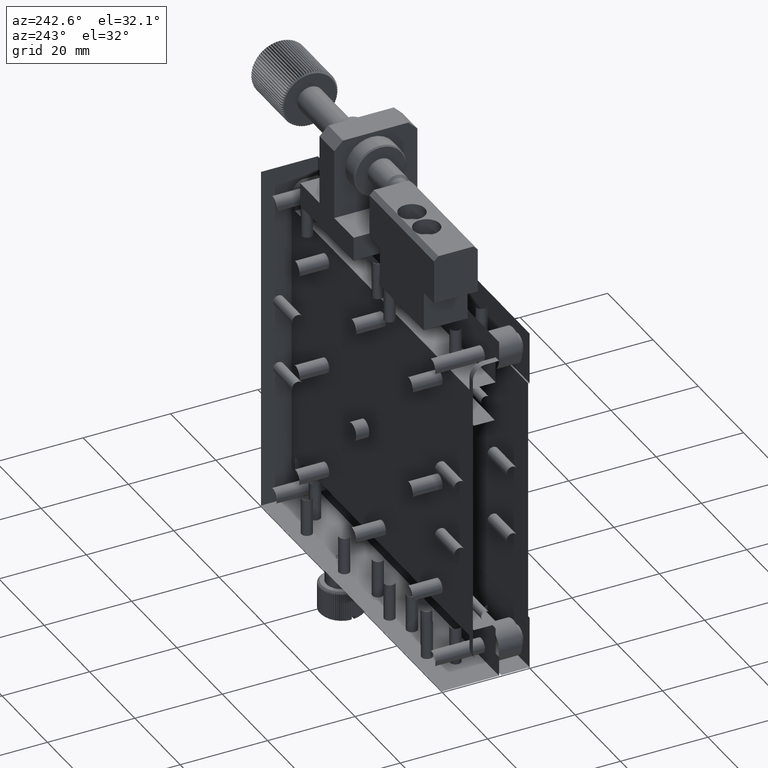
[diagram: clean part render]
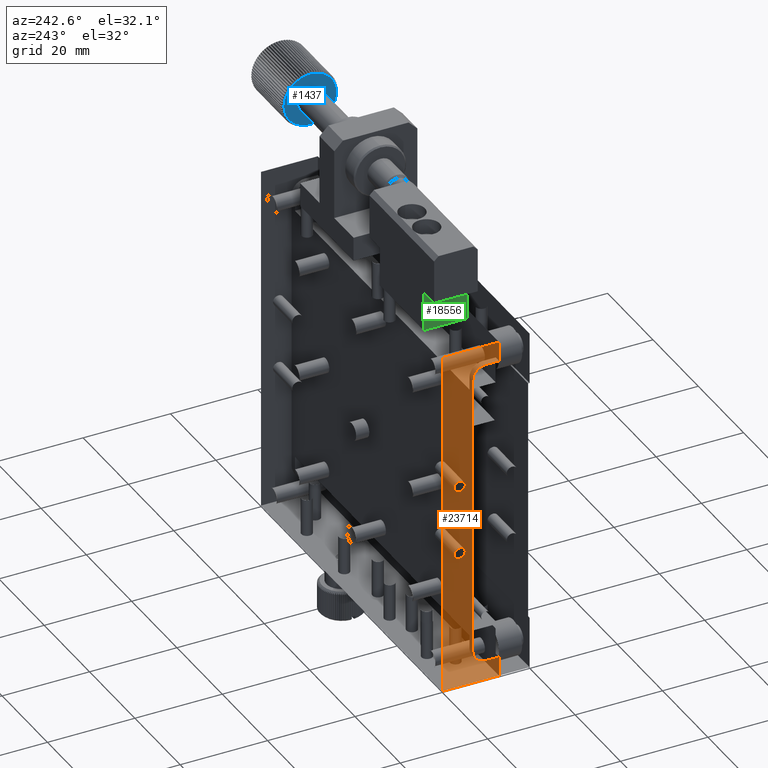
[diagram: same view with three faces highlighted in distinct colors, each labeled with its STEP entity id]
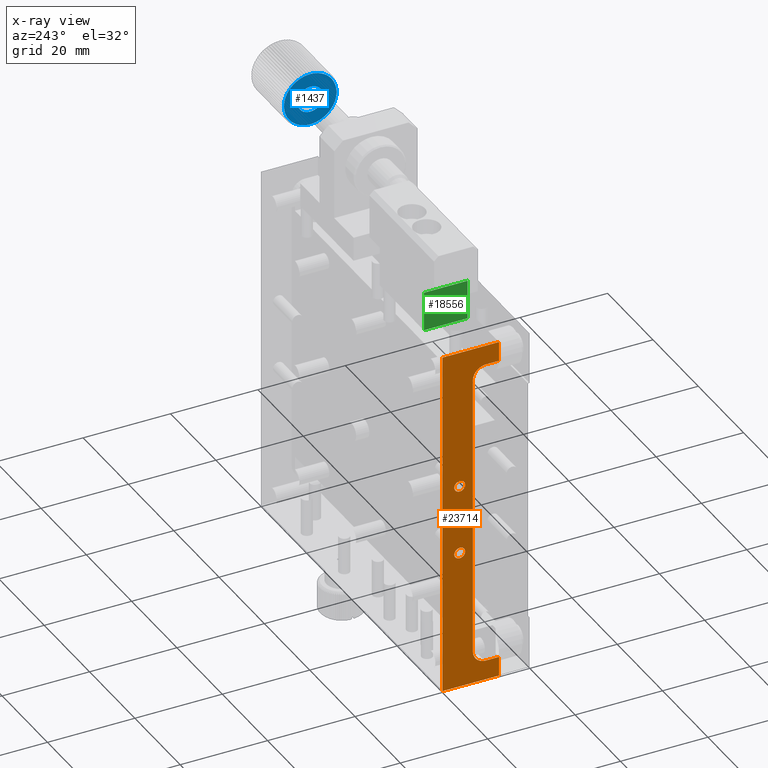
[diagram: x-ray of the same camera — body ghosted, the three highlighted faces saturated]
A machine part, auxiliary view with three faces highlighted in distinct colors.
The next image is the same camera in x-ray (body ghosted, the three faces saturated) — at least one of them is partly hidden behind the body in this view.
Their STEP definitions:

[orange] entity #23714 — the highlighted planar face has unit normal (-1, 0, 0).
#4 = VECTOR ( 'NONE', #22137, 1000.000000000000000 ) ;
#163 = DIRECTION ( 'NONE',  ( 0.000000000000000000, 0.000000000000000000, 1.000000000000000000 ) ) ;
#388 = EDGE_CURVE ( 'NONE', #6894, #15787, #10564, .T. ) ;
#398 = CARTESIAN_POINT ( 'NONE',  ( -40.47147342062429232, 6.656824835573202925, 9.249999999999987566 ) ) ;
#918 = DIRECTION ( 'NONE',  ( 0.000000000000000000, 1.000000000000000000, 0.000000000000000000 ) ) ;
#939 = DIRECTION ( 'NONE',  ( -0.000000000000000000, -1.000000000000000000, 0.000000000000000000 ) ) ;
#995 = DIRECTION ( 'NONE',  ( 0.000000000000000000, 0.000000000000000000, -1.000000000000000000 ) ) ;
#1880 = ORIENTED_EDGE ( 'NONE', *, *, #388, .T. ) ;
#1987 = DIRECTION ( 'NONE',  ( 0.000000000000000000, -1.000000000000000000, -0.000000000000000000 ) ) ;
#2496 = VERTEX_POINT ( 'NONE', #5186 ) ;
#2501 = VERTEX_POINT ( 'NONE', #22649 ) ;
#2837 = VERTEX_POINT ( 'NONE', #19299 ) ;
#2998 = VERTEX_POINT ( 'NONE', #23713 ) ;
#3021 = VECTOR ( 'NONE', #918, 1000.000000000000000 ) ;
#3157 = CARTESIAN_POINT ( 'NONE',  ( -40.47147342062429232, 6.656824835573202925, -8.000000000000000000 ) ) ;
#3216 = DIRECTION ( 'NONE',  ( 0.000000000000000000, 0.000000000000000000, -1.000000000000000000 ) ) ;
#4186 = CARTESIAN_POINT ( 'NONE',  ( -40.47147342062429232, -2.343175164426796186, 40.00000000000000000 ) ) ;
#4289 = DIRECTION ( 'NONE',  ( 1.000000000000000000, 0.000000000000000000, 0.000000000000000000 ) ) ;
#4653 = EDGE_LOOP ( 'NONE', ( #16385 ) ) ;
#5103 = DIRECTION ( 'NONE',  ( 1.000000000000000000, 0.000000000000000000, 0.000000000000000000 ) ) ;
#5164 = DIRECTION ( 'NONE',  ( 1.000000000000000000, 0.000000000000000000, 0.000000000000000000 ) ) ;
#5186 = CARTESIAN_POINT ( 'NONE',  ( -40.47147342062429232, 3.656824835573203814, -32.49999999999999289 ) ) ;
#5241 = DIRECTION ( 'NONE',  ( 0.000000000000000000, 0.000000000000000000, 1.000000000000000000 ) ) ;
#5400 = ORIENTED_EDGE ( 'NONE', *, *, #13805, .F. ) ;
#5442 = ORIENTED_EDGE ( 'NONE', *, *, #9317, .F. ) ;
#5768 = EDGE_CURVE ( 'NONE', #21956, #15787, #11929, .T. ) ;
#5966 = CARTESIAN_POINT ( 'NONE',  ( -40.47147342062429232, 0.6568248355732047017, 35.50000000000001421 ) ) ;
#6630 = EDGE_CURVE ( 'NONE', #21956, #24991, #9798, .T. ) ;
#6894 = VERTEX_POINT ( 'NONE', #9266 ) ;
#6896 = AXIS2_PLACEMENT_3D ( 'NONE', #16164, #4289, #995 ) ;
#7132 = EDGE_LOOP ( 'NONE', ( #5442 ) ) ;
#7140 = EDGE_CURVE ( 'NONE', #2496, #2837, #16436, .T. ) ;
#8209 = EDGE_LOOP ( 'NONE', ( #1880, #8235, #11433, #21066, #25625, #15544, #14085, #15126, #13601, #5400 ) ) ;
#8235 = ORIENTED_EDGE ( 'NONE', *, *, #5768, .F. ) ;
#8329 = VERTEX_POINT ( 'NONE', #8588 ) ;
#8352 = CARTESIAN_POINT ( 'NONE',  ( -40.47147342062429232, 0.6568248355732047017, -35.50000000000000711 ) ) ;
#8588 = CARTESIAN_POINT ( 'NONE',  ( -40.47147342062429232, 6.656824835573202925, -6.750000000000013323 ) ) ;
#8797 = CIRCLE ( 'NONE', #9217, 1.249999999999987121 ) ;
#9035 = AXIS2_PLACEMENT_3D ( 'NONE', #9154, #17226, #19051 ) ;
#9154 = CARTESIAN_POINT ( 'NONE',  ( -40.47147342062429232, 10.65682483557320559, 40.00000000000000000 ) ) ;
#9217 = AXIS2_PLACEMENT_3D ( 'NONE', #3157, #5103, #15035 ) ;
#9219 = AXIS2_PLACEMENT_3D ( 'NONE', #19030, #19286, #16951 ) ;
#9266 = CARTESIAN_POINT ( 'NONE',  ( -40.47147342062429232, -2.343175164426796631, -39.99999999999999289 ) ) ;
#9317 = EDGE_CURVE ( 'NONE', #18744, #18744, #14171, .T. ) ;
#9318 = EDGE_CURVE ( 'NONE', #20404, #2501, #15149, .T. ) ;
#9507 = VECTOR ( 'NONE', #18174, 1000.000000000000000 ) ;
#9798 = LINE ( 'NONE', #17745, #21196 ) ;
#10564 = LINE ( 'NONE', #18754, #3021 ) ;
#10701 = EDGE_CURVE ( 'NONE', #8329, #8329, #8797, .T. ) ;
#10977 = FACE_BOUND ( 'NONE', #4653, .T. ) ;
#11362 = FACE_BOUND ( 'NONE', #7132, .T. ) ;
#11433 = ORIENTED_EDGE ( 'NONE', *, *, #6630, .T. ) ;
#11929 = LINE ( 'NONE', #24164, #9507 ) ;
#12014 = VECTOR ( 'NONE', #21991, 1000.000000000000000 ) ;
#12042 = CARTESIAN_POINT ( 'NONE',  ( -40.47147342062429232, 10.65682483557320559, -39.99999999999999289 ) ) ;
#12319 = CIRCLE ( 'NONE', #6896, 2.999999999999999112 ) ;
#12822 = CIRCLE ( 'NONE', #24479, 2.999999999999995559 ) ;
#13601 = ORIENTED_EDGE ( 'NONE', *, *, #20790, .F. ) ;
#13687 = EDGE_CURVE ( 'NONE', #2501, #24991, #17487, .T. ) ;
#13763 = CARTESIAN_POINT ( 'NONE',  ( -40.47147342062429232, 10.65682483557320559, 40.00000000000000000 ) ) ;
#13805 = EDGE_CURVE ( 'NONE', #6894, #2998, #22155, .T. ) ;
#14069 = CARTESIAN_POINT ( 'NONE',  ( -40.47147342062429232, 10.65682483557320559, -35.50000000000001421 ) ) ;
#14085 = ORIENTED_EDGE ( 'NONE', *, *, #7140, .F. ) ;
#14171 = CIRCLE ( 'NONE', #9219, 1.249999999999987121 ) ;
#14221 = CARTESIAN_POINT ( 'NONE',  ( -40.47147342062429232, 3.656824835573203814, 40.00000000000000000 ) ) ;
#15035 = DIRECTION ( 'NONE',  ( 0.000000000000000000, 0.000000000000000000, 1.000000000000000000 ) ) ;
#15039 = PLANE ( 'NONE',  #9035 ) ;
#15126 = ORIENTED_EDGE ( 'NONE', *, *, #24314, .F. ) ;
#15149 = LINE ( 'NONE', #25277, #15892 ) ;
#15544 = ORIENTED_EDGE ( 'NONE', *, *, #16888, .F. ) ;
#15787 = VERTEX_POINT ( 'NONE', #12042 ) ;
#15892 = VECTOR ( 'NONE', #939, 1000.000000000000000 ) ;
#16029 = LINE ( 'NONE', #14069, #12014 ) ;
#16164 = CARTESIAN_POINT ( 'NONE',  ( -40.47147342062429232, 0.6568248355732047017, 32.50000000000000000 ) ) ;
#16385 = ORIENTED_EDGE ( 'NONE', *, *, #10701, .F. ) ;
#16436 = LINE ( 'NONE', #14221, #4 ) ;
#16888 = EDGE_CURVE ( 'NONE', #2837, #20404, #12319, .T. ) ;
#16951 = DIRECTION ( 'NONE',  ( 0.000000000000000000, 0.000000000000000000, 1.000000000000000000 ) ) ;
#17032 = CARTESIAN_POINT ( 'NONE',  ( -40.47147342062429232, 0.6568248355732047017, -32.49999999999999289 ) ) ;
#17226 = DIRECTION ( 'NONE',  ( -1.000000000000000000, 0.000000000000000000, 0.000000000000000000 ) ) ;
#17487 = LINE ( 'NONE', #19564, #25072 ) ;
#17745 = CARTESIAN_POINT ( 'NONE',  ( -40.47147342062429232, 10.65682483557320559, 40.00000000000000000 ) ) ;
#18174 = DIRECTION ( 'NONE',  ( 0.000000000000000000, -0.000000000000000000, -1.000000000000000000 ) ) ;
#18744 = VERTEX_POINT ( 'NONE', #398 ) ;
#18754 = CARTESIAN_POINT ( 'NONE',  ( -40.47147342062429232, 10.65682483557320559, -39.99999999999999289 ) ) ;
#19030 = CARTESIAN_POINT ( 'NONE',  ( -40.47147342062429232, 6.656824835573202925, 8.000000000000000000 ) ) ;
#19051 = DIRECTION ( 'NONE',  ( 0.000000000000000000, 0.000000000000000000, 1.000000000000000000 ) ) ;
#19286 = DIRECTION ( 'NONE',  ( 1.000000000000000000, 0.000000000000000000, 0.000000000000000000 ) ) ;
#19299 = CARTESIAN_POINT ( 'NONE',  ( -40.47147342062429232, 3.656824835573203814, 32.50000000000000000 ) ) ;
#19564 = CARTESIAN_POINT ( 'NONE',  ( -40.47147342062429232, -2.343175164426796186, 40.00000000000000000 ) ) ;
#20034 = VERTEX_POINT ( 'NONE', #8352 ) ;
#20404 = VERTEX_POINT ( 'NONE', #5966 ) ;
#20790 = EDGE_CURVE ( 'NONE', #2998, #20034, #16029, .T. ) ;
#21009 = FACE_OUTER_BOUND ( 'NONE', #8209, .T. ) ;
#21066 = ORIENTED_EDGE ( 'NONE', *, *, #13687, .F. ) ;
#21196 = VECTOR ( 'NONE', #1987, 1000.000000000000000 ) ;
#21956 = VERTEX_POINT ( 'NONE', #13763 ) ;
#21991 = DIRECTION ( 'NONE',  ( 0.000000000000000000, 1.000000000000000000, -0.000000000000000000 ) ) ;
#22137 = DIRECTION ( 'NONE',  ( 0.000000000000000000, 0.000000000000000000, 1.000000000000000000 ) ) ;
#22155 = LINE ( 'NONE', #4186, #22581 ) ;
#22521 = CARTESIAN_POINT ( 'NONE',  ( -40.47147342062429232, -2.343175164426796631, 40.00000000000000000 ) ) ;
#22581 = VECTOR ( 'NONE', #163, 1000.000000000000000 ) ;
#22649 = CARTESIAN_POINT ( 'NONE',  ( -40.47147342062429232, -2.343175164426796631, 35.50000000000001421 ) ) ;
#23713 = CARTESIAN_POINT ( 'NONE',  ( -40.47147342062429232, -2.343175164426796631, -35.50000000000001421 ) ) ;
#23714 = ADVANCED_FACE ( 'NONE', ( #21009, #10977, #11362 ), #15039, .F. ) ;
#24164 = CARTESIAN_POINT ( 'NONE',  ( -40.47147342062429232, 10.65682483557320559, 0.000000000000000000 ) ) ;
#24314 = EDGE_CURVE ( 'NONE', #20034, #2496, #12822, .T. ) ;
#24479 = AXIS2_PLACEMENT_3D ( 'NONE', #17032, #5164, #3216 ) ;
#24991 = VERTEX_POINT ( 'NONE', #22521 ) ;
#25072 = VECTOR ( 'NONE', #5241, 1000.000000000000000 ) ;
#25277 = CARTESIAN_POINT ( 'NONE',  ( -40.47147342062429232, 10.65682483557320559, 35.50000000000001421 ) ) ;
#25625 = ORIENTED_EDGE ( 'NONE', *, *, #9318, .F. ) ;

[blue] entity #1437 — the highlighted planar face has unit normal (-1, -0, -0).
#46 = CARTESIAN_POINT ( 'NONE',  ( 35.52852657946914405, 1.456824835573184762, 57.00000000000002132 ) ) ;
#107 = CIRCLE ( 'NONE', #13837, 6.000000000077214679 ) ;
#122 = ORIENTED_EDGE ( 'NONE', *, *, #3115, .T. ) ;
#154 = DIRECTION ( 'NONE',  ( 0.000000000000000000, -1.243218491100712600E-14, -1.000000000000000000 ) ) ;
#306 = ORIENTED_EDGE ( 'NONE', *, *, #2323, .T. ) ;
#318 = CARTESIAN_POINT ( 'NONE',  ( 35.52852657946914405, 1.456824835573184762, 57.00000000000002132 ) ) ;
#347 = DIRECTION ( 'NONE',  ( 0.000000000000000000, 0.000000000000000000, -1.000000000000000000 ) ) ;
#363 = CARTESIAN_POINT ( 'NONE',  ( 35.52852657946914405, 1.456824835573184762, 57.00000000000002132 ) ) ;
#375 = VERTEX_POINT ( 'NONE', #4940 ) ;
#399 = DIRECTION ( 'NONE',  ( 0.000000000000000000, -5.063224145442146427E-14, -1.000000000000000000 ) ) ;
#437 = VERTEX_POINT ( 'NONE', #20969 ) ;
#470 = EDGE_CURVE ( 'NONE', #14326, #8690, #1768, .T. ) ;
#554 = EDGE_CURVE ( 'NONE', #10200, #4977, #23795, .T. ) ;
#565 = VERTEX_POINT ( 'NONE', #20262 ) ;
#587 = DIRECTION ( 'NONE',  ( -1.000000000000000000, 0.000000000000000000, -0.000000000000000000 ) ) ;
#609 = DIRECTION ( 'NONE',  ( -1.000000000000000000, 0.000000000000000000, -0.000000000000000000 ) ) ;
#614 = CIRCLE ( 'NONE', #18912, 6.000000000077214679 ) ;
#789 = VERTEX_POINT ( 'NONE', #11646 ) ;
#791 = VERTEX_POINT ( 'NONE', #25324 ) ;
#795 = VERTEX_POINT ( 'NONE', #17509 ) ;
#933 = EDGE_CURVE ( 'NONE', #17384, #1521, #12609, .T. ) ;
#938 = EDGE_CURVE ( 'NONE', #4774, #789, #7604, .T. ) ;
#1001 = EDGE_CURVE ( 'NONE', #4599, #15926, #22164, .T. ) ;
#1012 = CARTESIAN_POINT ( 'NONE',  ( 35.52852657946914405, 1.456824835573184762, 57.00000000000002132 ) ) ;
#1054 = EDGE_CURVE ( 'NONE', #25287, #375, #4288, .T. ) ;
#1066 = AXIS2_PLACEMENT_3D ( 'NONE', #46, #19958, #2618 ) ;
#1100 = CARTESIAN_POINT ( 'NONE',  ( 35.52852657937573611, 0.6514252406678480156, 51.05430142939634663 ) ) ;
#1188 = AXIS2_PLACEMENT_3D ( 'NONE', #6192, #14163, #23907 ) ;
#1270 = CIRCLE ( 'NONE', #2936, 6.000000000077214679 ) ;
#1272 = DIRECTION ( 'NONE',  ( 0.000000000000000000, 1.770863548370201041E-15, -1.000000000000000000 ) ) ;
#1325 = EDGE_CURVE ( 'NONE', #10617, #565, #5528, .T. ) ;
#1351 = CARTESIAN_POINT ( 'NONE',  ( 35.52852657937573611, -3.397277130673238332, 53.47328848624748332 ) ) ;
#1373 = ORIENTED_EDGE ( 'NONE', *, *, #470, .T. ) ;
#1430 = VERTEX_POINT ( 'NONE', #21457 ) ;
#1437 = ADVANCED_FACE ( 'NONE', ( #3876, #5684 ), #11823, .T. ) ;
#1507 = CARTESIAN_POINT ( 'NONE',  ( 35.52852657937573611, 7.074234059407871200, 59.10824894448667521 ) ) ;
#1521 = VERTEX_POINT ( 'NONE', #14177 ) ;
#1653 = VERTEX_POINT ( 'NONE', #22493 ) ;
#1670 = EDGE_CURVE ( 'NONE', #18598, #8339, #23090, .T. ) ;
#1714 = AXIS2_PLACEMENT_3D ( 'NONE', #15221, #3212, #16777 ) ;
#1768 = CIRCLE ( 'NONE', #11335, 6.000000000077214679 ) ;
#1828 = CIRCLE ( 'NONE', #24706, 6.000000000077214679 ) ;
#1908 = VERTEX_POINT ( 'NONE', #16112 ) ;
#1914 = AXIS2_PLACEMENT_3D ( 'NONE', #4044, #6118, #154 ) ;
#1965 = VERTEX_POINT ( 'NONE', #24154 ) ;
#2000 = DIRECTION ( 'NONE',  ( 0.000000000000000000, -2.041914091488089201E-14, -1.000000000000000000 ) ) ;
#2043 = CARTESIAN_POINT ( 'NONE',  ( 35.52852657937573611, -4.519020928394276382, 57.53783585342020501 ) ) ;
#2121 = DIRECTION ( 'NONE',  ( -1.000000000000000000, 0.000000000000000000, -0.000000000000000000 ) ) ;
#2158 = CARTESIAN_POINT ( 'NONE',  ( 35.52852657937573611, -2.689551058345211132, 52.66323081703850306 ) ) ;
#2323 = EDGE_CURVE ( 'NONE', #14743, #18779, #21424, .T. ) ;
#2353 = CARTESIAN_POINT ( 'NONE',  ( 35.52852657946914405, 1.456824835573184762, 57.00000000000002132 ) ) ;
#2359 = EDGE_CURVE ( 'NONE', #21437, #12367, #18546, .T. ) ;
#2392 = CARTESIAN_POINT ( 'NONE',  ( 35.52852657937573611, -1.386387139262870383, 51.71642680886306920 ) ) ;
#2433 = CIRCLE ( 'NONE', #16984, 6.000000000077214679 ) ;
#2438 = AXIS2_PLACEMENT_3D ( 'NONE', #16381, #609, #347 ) ;
#2453 = AXIS2_PLACEMENT_3D ( 'NONE', #21731, #13423, #11842 ) ;
#2600 = EDGE_CURVE ( 'NONE', #6976, #10720, #11882, .T. ) ;
#2618 = DIRECTION ( 'NONE',  ( 0.000000000000000000, 0.000000000000000000, -1.000000000000000000 ) ) ;
#2699 = CARTESIAN_POINT ( 'NONE',  ( 35.52852657946914405, 1.456824835573184762, 57.00000000000002132 ) ) ;
#2720 = ORIENTED_EDGE ( 'NONE', *, *, #25105, .T. ) ;
#2753 = AXIS2_PLACEMENT_3D ( 'NONE', #363, #18464, #24184 ) ;
#2822 = CARTESIAN_POINT ( 'NONE',  ( 35.52852657937573611, 1.456824835573184540, 57.00000000000001421 ) ) ;
#2836 = DIRECTION ( 'NONE',  ( -1.000000000000000000, 0.000000000000000000, -0.000000000000000000 ) ) ;
#2855 = DIRECTION ( 'NONE',  ( -1.000000000000000000, 0.000000000000000000, -0.000000000000000000 ) ) ;
#2932 = CIRCLE ( 'NONE', #10046, 6.000000000077214679 ) ;
#2936 = AXIS2_PLACEMENT_3D ( 'NONE', #24957, #7112, #15082 ) ;
#2947 = CARTESIAN_POINT ( 'NONE',  ( 35.52852657937573611, 7.360402367161051451, 55.92865863120899661 ) ) ;
#2953 = ORIENTED_EDGE ( 'NONE', *, *, #5947, .T. ) ;
#2959 = CARTESIAN_POINT ( 'NONE',  ( 35.52852657937573611, 6.862638042984102960, 59.60330243470363598 ) ) ;
#2961 = EDGE_CURVE ( 'NONE', #3053, #795, #17708, .T. ) ;
#3053 = VERTEX_POINT ( 'NONE', #11616 ) ;
#3089 = VERTEX_POINT ( 'NONE', #5729 ) ;
#3096 = VERTEX_POINT ( 'NONE', #11739 ) ;
#3115 = EDGE_CURVE ( 'NONE', #19557, #5220, #10223, .T. ) ;
#3158 = CIRCLE ( 'NONE', #16493, 6.000000000077214679 ) ;
#3212 = DIRECTION ( 'NONE',  ( -1.000000000000000000, 0.000000000000000000, -0.000000000000000000 ) ) ;
#3219 = CARTESIAN_POINT ( 'NONE',  ( 35.52852657946914405, 1.456824835573184762, 57.00000000000002132 ) ) ;
#3244 = ORIENTED_EDGE ( 'NONE', *, *, #7593, .T. ) ;
#3270 = ORIENTED_EDGE ( 'NONE', *, *, #3637, .T. ) ;
#3320 = VERTEX_POINT ( 'NONE', #8854 ) ;
#3365 = CARTESIAN_POINT ( 'NONE',  ( 35.52852657937573611, -3.397277130673288070, 60.52671151375248826 ) ) ;
#3368 = EDGE_CURVE ( 'NONE', #12121, #13381, #23145, .T. ) ;
#3487 = CARTESIAN_POINT ( 'NONE',  ( 35.52852657946914405, 1.456824835573184762, 57.00000000000002132 ) ) ;
#3604 = DIRECTION ( 'NONE',  ( 0.000000000000000000, 0.000000000000000000, -1.000000000000000000 ) ) ;
#3621 = VERTEX_POINT ( 'NONE', #4279 ) ;
#3637 = EDGE_CURVE ( 'NONE', #1908, #23736, #18597, .T. ) ;
#3678 = CIRCLE ( 'NONE', #7015, 6.000000000077214679 ) ;
#3706 = CIRCLE ( 'NONE', #21574, 6.000000000077214679 ) ;
#3736 = DIRECTION ( 'NONE',  ( -1.000000000000000000, 0.000000000000000000, -0.000000000000000000 ) ) ;
#3876 = FACE_BOUND ( 'NONE', #19677, .T. ) ;
#3889 = ORIENTED_EDGE ( 'NONE', *, *, #15451, .T. ) ;
#4009 = VERTEX_POINT ( 'NONE', #23211 ) ;
#4033 = DIRECTION ( 'NONE',  ( 0.000000000000000000, 1.597391200774752887E-14, -1.000000000000000000 ) ) ;
#4044 = CARTESIAN_POINT ( 'NONE',  ( 35.52852657946914405, 1.456824835573184762, 57.00000000000002132 ) ) ;
#4070 = CARTESIAN_POINT ( 'NONE',  ( 35.52852657946914405, 1.456824835573184762, 57.00000000000002132 ) ) ;
#4094 = AXIS2_PLACEMENT_3D ( 'NONE', #6251, #22144, #23972 ) ;
#4119 = CARTESIAN_POINT ( 'NONE',  ( 35.52852657946914405, 1.456824835573184762, 57.00000000000002132 ) ) ;
#4121 = CARTESIAN_POINT ( 'NONE',  ( 35.52852657946914405, 1.456824835573184762, 57.00000000000002132 ) ) ;
#4126 = CARTESIAN_POINT ( 'NONE',  ( 35.52852657937573611, 4.762206724283655213, 51.99256047767557476 ) ) ;
#4179 = ORIENTED_EDGE ( 'NONE', *, *, #17115, .T. ) ;
#4180 = DIRECTION ( 'NONE',  ( -1.000000000000000000, 0.000000000000000000, -0.000000000000000000 ) ) ;
#4209 = DIRECTION ( 'NONE',  ( -1.000000000000000000, 0.000000000000000000, -0.000000000000000000 ) ) ;
#4279 = CARTESIAN_POINT ( 'NONE',  ( 35.52852657937573611, 4.300036810409340049, 51.71642680886314025 ) ) ;
#4286 = CIRCLE ( 'NONE', #20084, 6.000000000077214679 ) ;
#4288 = CIRCLE ( 'NONE', #21733, 6.000000000077214679 ) ;
#4320 = CARTESIAN_POINT ( 'NONE',  ( 35.52852657937573611, 6.607517597180954105, 60.07739566443341772 ) ) ;
#4334 = ORIENTED_EDGE ( 'NONE', *, *, #933, .T. ) ;
#4444 = DIRECTION ( 'NONE',  ( -1.000000000000000000, 0.000000000000000000, -0.000000000000000000 ) ) ;
#4514 = VERTEX_POINT ( 'NONE', #16651 ) ;
#4599 = VERTEX_POINT ( 'NONE', #24967 ) ;
#4654 = CARTESIAN_POINT ( 'NONE',  ( 35.52852657946914405, 1.456824835573184762, 57.00000000000002132 ) ) ;
#4774 = VERTEX_POINT ( 'NONE', #5781 ) ;
#4780 = CARTESIAN_POINT ( 'NONE',  ( 35.52852657946914405, 1.456824835573184762, 57.00000000000002132 ) ) ;
#4821 = CARTESIAN_POINT ( 'NONE',  ( 35.52852657946914405, 1.456824835573184762, 57.00000000000002132 ) ) ;
#4932 = AXIS2_PLACEMENT_3D ( 'NONE', #14355, #10433, #18106 ) ;
#4940 = CARTESIAN_POINT ( 'NONE',  ( 35.52852657937573611, 5.975253631591893821, 53.05236764436442343 ) ) ;
#4976 = DIRECTION ( 'NONE',  ( 0.000000000000000000, 4.618701254728810428E-14, -1.000000000000000000 ) ) ;
#4977 = VERTEX_POINT ( 'NONE', #7340 ) ;
#5008 = CIRCLE ( 'NONE', #14595, 6.000000000077214679 ) ;
#5052 = AXIS2_PLACEMENT_3D ( 'NONE', #4780, #2836, #6997 ) ;
#5091 = AXIS2_PLACEMENT_3D ( 'NONE', #25003, #15127, #23043 ) ;
#5119 = CARTESIAN_POINT ( 'NONE',  ( 35.52852657946914405, 1.456824835573184762, 57.00000000000002132 ) ) ;
#5125 = CARTESIAN_POINT ( 'NONE',  ( 35.52852657937573611, -0.3972771306752109766, 51.29366090223287244 ) ) ;
#5149 = ORIENTED_EDGE ( 'NONE', *, *, #11988, .T. ) ;
#5220 = VERTEX_POINT ( 'NONE', #5222 ) ;
#5222 = CARTESIAN_POINT ( 'NONE',  ( 35.52852657937573611, 4.300036810409268995, 62.28357319113693791 ) ) ;
#5231 = CIRCLE ( 'NONE', #2753, 6.000000000077214679 ) ;
#5323 = CARTESIAN_POINT ( 'NONE',  ( 35.52852657946914405, 1.456824835573184762, 57.00000000000002132 ) ) ;
#5362 = EDGE_CURVE ( 'NONE', #19416, #19557, #17395, .T. ) ;
#5472 = EDGE_CURVE ( 'NONE', #10242, #14743, #10321, .T. ) ;
#5506 = DIRECTION ( 'NONE',  ( -1.000000000000000000, 0.000000000000000000, -0.000000000000000000 ) ) ;
#5522 = EDGE_CURVE ( 'NONE', #565, #24226, #7011, .T. ) ;
#5528 = CIRCLE ( 'NONE', #15552, 6.000000000077214679 ) ;
#5568 = EDGE_CURVE ( 'NONE', #5220, #12121, #25317, .T. ) ;
#5623 = DIRECTION ( 'NONE',  ( -1.000000000000000000, 0.000000000000000000, -0.000000000000000000 ) ) ;
#5684 = FACE_OUTER_BOUND ( 'NONE', #11666, .T. ) ;
#5729 = CARTESIAN_POINT ( 'NONE',  ( 35.52852657937573611, 2.791950439310246335, 51.15043252691297937 ) ) ;
#5781 = CARTESIAN_POINT ( 'NONE',  ( 35.52852657937573611, 5.975253631591835202, 60.94763235563567605 ) ) ;
#5790 = DIRECTION ( 'NONE',  ( -1.000000000000000000, 0.000000000000000000, -0.000000000000000000 ) ) ;
#5799 = CARTESIAN_POINT ( 'NONE',  ( 35.52852657946914405, 1.456824835573184762, 57.00000000000002132 ) ) ;
#5846 = ORIENTED_EDGE ( 'NONE', *, *, #20984, .T. ) ;
#5860 = CARTESIAN_POINT ( 'NONE',  ( 35.52852657937573611, 1.726013817676072648, 62.99395839924391538 ) ) ;
#5885 = VERTEX_POINT ( 'NONE', #19730 ) ;
#5902 = CIRCLE ( 'NONE', #15924, 6.000000000077214679 ) ;
#5929 = DIRECTION ( 'NONE',  ( 0.000000000000000000, 0.000000000000000000, -1.000000000000000000 ) ) ;
#5947 = EDGE_CURVE ( 'NONE', #7226, #3621, #3706, .T. ) ;
#6113 = ORIENTED_EDGE ( 'NONE', *, *, #2600, .T. ) ;
#6118 = DIRECTION ( 'NONE',  ( -1.000000000000000000, 0.000000000000000000, -0.000000000000000000 ) ) ;
#6159 = DIRECTION ( 'NONE',  ( 0.000000000000000000, 0.000000000000000000, -1.000000000000000000 ) ) ;
#6192 = CARTESIAN_POINT ( 'NONE',  ( 35.52852657946914405, 1.456824835573184762, 57.00000000000002132 ) ) ;
#6210 = AXIS2_PLACEMENT_3D ( 'NONE', #22970, #5623, #23475 ) ;
#6251 = CARTESIAN_POINT ( 'NONE',  ( 35.52852657946914405, 1.456824835573184762, 57.00000000000002132 ) ) ;
#6285 = CARTESIAN_POINT ( 'NONE',  ( 35.52852657946914405, 1.456824835573184762, 57.00000000000002132 ) ) ;
#6287 = CARTESIAN_POINT ( 'NONE',  ( 35.52852657937573611, 7.074234059407898734, 54.89175105551343847 ) ) ;
#6298 = CARTESIAN_POINT ( 'NONE',  ( 35.52852657946914405, 1.456824835573184762, 57.00000000000002132 ) ) ;
#6361 = CIRCLE ( 'NONE', #25489, 6.000000000077214679 ) ;
#6420 = CARTESIAN_POINT ( 'NONE',  ( 35.52852657946914405, 1.456824835573184762, 57.00000000000002132 ) ) ;
#6461 = EDGE_CURVE ( 'NONE', #15926, #19416, #20362, .T. ) ;
#6469 = CARTESIAN_POINT ( 'NONE',  ( 35.52852657937573611, 3.310926801821616472, 62.70633909776714177 ) ) ;
#6511 = ORIENTED_EDGE ( 'NONE', *, *, #3368, .T. ) ;
#6531 = CARTESIAN_POINT ( 'NONE',  ( 35.52852657946914405, 1.456824835573184762, 57.00000000000002132 ) ) ;
#6551 = CARTESIAN_POINT ( 'NONE',  ( 35.52852657946914405, 1.456824835573184762, 57.00000000000002132 ) ) ;
#6631 = DIRECTION ( 'NONE',  ( 0.000000000000000000, -2.663523337038445501E-14, -1.000000000000000000 ) ) ;
#6645 = ORIENTED_EDGE ( 'NONE', *, *, #1054, .T. ) ;
#6675 = EDGE_CURVE ( 'NONE', #18779, #1430, #24531, .T. ) ;
#6976 = VERTEX_POINT ( 'NONE', #11987 ) ;
#6997 = DIRECTION ( 'NONE',  ( 0.000000000000000000, 9.757819552243965872E-15, -1.000000000000000000 ) ) ;
#7007 = CIRCLE ( 'NONE', #24044, 6.000000000077214679 ) ;
#7011 = CIRCLE ( 'NONE', #13671, 6.000000000077214679 ) ;
#7015 = AXIS2_PLACEMENT_3D ( 'NONE', #6531, #14510, #12539 ) ;
#7112 = DIRECTION ( 'NONE',  ( -1.000000000000000000, 0.000000000000000000, -0.000000000000000000 ) ) ;
#7114 = CARTESIAN_POINT ( 'NONE',  ( 35.52852657937573611, -3.693867926034605897, 60.07739566443336798 ) ) ;
#7129 = DIRECTION ( 'NONE',  ( -1.000000000000000000, 0.000000000000000000, -0.000000000000000000 ) ) ;
#7166 = ORIENTED_EDGE ( 'NONE', *, *, #24723, .T. ) ;
#7211 = DIRECTION ( 'NONE',  ( -1.000000000000000000, 0.000000000000000000, -0.000000000000000000 ) ) ;
#7226 = VERTEX_POINT ( 'NONE', #4126 ) ;
#7278 = EDGE_CURVE ( 'NONE', #12225, #10145, #17867, .T. ) ;
#7304 = EDGE_CURVE ( 'NONE', #20697, #20697, #12908, .T. ) ;
#7337 = EDGE_CURVE ( 'NONE', #14614, #3053, #5008, .T. ) ;
#7340 = CARTESIAN_POINT ( 'NONE',  ( 35.52852657937573611, -3.061603960445450134, 53.05236764436432395 ) ) ;
#7384 = DIRECTION ( 'NONE',  ( -1.000000000000000000, 0.000000000000000000, -0.000000000000000000 ) ) ;
#7404 = VERTEX_POINT ( 'NONE', #2947 ) ;
#7593 = EDGE_CURVE ( 'NONE', #9974, #25379, #1270, .T. ) ;
#7599 = ORIENTED_EDGE ( 'NONE', *, *, #10893, .T. ) ;
#7602 = AXIS2_PLACEMENT_3D ( 'NONE', #15046, #10731, #8771 ) ;
#7604 = CIRCLE ( 'NONE', #16774, 6.000000000077214679 ) ;
#7632 = DIRECTION ( 'NONE',  ( -1.000000000000000000, 0.000000000000000000, -0.000000000000000000 ) ) ;
#7757 = DIRECTION ( 'NONE',  ( -1.000000000000000000, 0.000000000000000000, -0.000000000000000000 ) ) ;
#7759 = DIRECTION ( 'NONE',  ( 0.000000000000000000, -1.955177917690364927E-14, -1.000000000000000000 ) ) ;
#7808 = DIRECTION ( 'NONE',  ( -1.000000000000000000, 0.000000000000000000, -0.000000000000000000 ) ) ;
#7812 = DIRECTION ( 'NONE',  ( 0.000000000000000000, 0.000000000000000000, -1.000000000000000000 ) ) ;
#7847 = DIRECTION ( 'NONE',  ( 0.000000000000000000, 1.333568672140008627E-14, -1.000000000000000000 ) ) ;
#7857 = ORIENTED_EDGE ( 'NONE', *, *, #23564, .T. ) ;
#7879 = CARTESIAN_POINT ( 'NONE',  ( 35.52852657946914405, 1.456824835573184762, 57.00000000000002132 ) ) ;
#7891 = CARTESIAN_POINT ( 'NONE',  ( 35.52852657946914405, 1.456824835573184762, 57.00000000000002132 ) ) ;
#7918 = ORIENTED_EDGE ( 'NONE', *, *, #10362, .T. ) ;
#7983 = CIRCLE ( 'NONE', #20481, 6.000000000077214679 ) ;
#8083 = CARTESIAN_POINT ( 'NONE',  ( 35.52852657937573611, 0.1216992318361657666, 62.84956747308706326 ) ) ;
#8103 = DIRECTION ( 'NONE',  ( 0.000000000000000000, 9.035018103929596788E-16, -1.000000000000000000 ) ) ;
#8104 = ORIENTED_EDGE ( 'NONE', *, *, #17892, .T. ) ;
#8117 = AXIS2_PLACEMENT_3D ( 'NONE', #4821, #8480, #24630 ) ;
#8144 = DIRECTION ( 'NONE',  ( 0.000000000000000000, 0.000000000000000000, -1.000000000000000000 ) ) ;
#8156 = DIRECTION ( 'NONE',  ( -1.000000000000000000, 0.000000000000000000, -0.000000000000000000 ) ) ;
#8238 = ORIENTED_EDGE ( 'NONE', *, *, #9397, .T. ) ;
#8339 = VERTEX_POINT ( 'NONE', #22799 ) ;
#8392 = AXIS2_PLACEMENT_3D ( 'NONE', #15092, #10655, #1272 ) ;
#8404 = ORIENTED_EDGE ( 'NONE', *, *, #5472, .T. ) ;
#8414 = AXIS2_PLACEMENT_3D ( 'NONE', #14255, #20229, #14126 ) ;
#8470 = DIRECTION ( 'NONE',  ( 0.000000000000000000, 0.000000000000000000, -1.000000000000000000 ) ) ;
#8480 = DIRECTION ( 'NONE',  ( -1.000000000000000000, 0.000000000000000000, -0.000000000000000000 ) ) ;
#8499 = CARTESIAN_POINT ( 'NONE',  ( 35.52852657937573611, 7.432670599540643686, 57.53783585342026186 ) ) ;
#8626 = AXIS2_PLACEMENT_3D ( 'NONE', #318, #16351, #6159 ) ;
#8627 = ORIENTED_EDGE ( 'NONE', *, *, #12344, .T. ) ;
#8682 = DIRECTION ( 'NONE',  ( -1.000000000000000000, 0.000000000000000000, -0.000000000000000000 ) ) ;
#8683 = ORIENTED_EDGE ( 'NONE', *, *, #22893, .T. ) ;
#8690 = VERTEX_POINT ( 'NONE', #21053 ) ;
#8706 = CARTESIAN_POINT ( 'NONE',  ( 35.52852657937573611, 0.6514252406677690788, 62.94569857060366758 ) ) ;
#8761 = CARTESIAN_POINT ( 'NONE',  ( 35.52852657946914405, 1.456824835573184762, 57.00000000000002132 ) ) ;
#8766 = ORIENTED_EDGE ( 'NONE', *, *, #14751, .T. ) ;
#8771 = DIRECTION ( 'NONE',  ( 0.000000000000000000, 0.000000000000000000, -1.000000000000000000 ) ) ;
#8830 = AXIS2_PLACEMENT_3D ( 'NONE', #19831, #2121, #7847 ) ;
#8852 = ORIENTED_EDGE ( 'NONE', *, *, #17258, .T. ) ;
#8854 = CARTESIAN_POINT ( 'NONE',  ( 35.52852657937573611, -4.326952328598075326, 55.40377892660098524 ) ) ;
#8892 = CARTESIAN_POINT ( 'NONE',  ( 35.52852657946914405, 1.456824835573184762, 57.00000000000002132 ) ) ;
#8899 = AXIS2_PLACEMENT_3D ( 'NONE', #7891, #587, #21830 ) ;
#8961 = AXIS2_PLACEMENT_3D ( 'NONE', #16578, #20589, #18641 ) ;
#9042 = ORIENTED_EDGE ( 'NONE', *, *, #23164, .T. ) ;
#9138 = EDGE_CURVE ( 'NONE', #3621, #1908, #2932, .T. ) ;
#9159 = CARTESIAN_POINT ( 'NONE',  ( 35.52852657946914405, 1.456824835573184762, 57.00000000000002132 ) ) ;
#9272 = ORIENTED_EDGE ( 'NONE', *, *, #7337, .T. ) ;
#9289 = AXIS2_PLACEMENT_3D ( 'NONE', #13658, #17805, #19757 ) ;
#9397 = EDGE_CURVE ( 'NONE', #13810, #14397, #25399, .T. ) ;
#9424 = ORIENTED_EDGE ( 'NONE', *, *, #19523, .T. ) ;
#9498 = CARTESIAN_POINT ( 'NONE',  ( 35.52852657937573611, 7.360402367161035464, 58.07134136879113129 ) ) ;
#9597 = CARTESIAN_POINT ( 'NONE',  ( 35.52852657937573611, -2.284113975576754108, 61.69098889480506642 ) ) ;
#9615 = ORIENTED_EDGE ( 'NONE', *, *, #5522, .T. ) ;
#9696 = CARTESIAN_POINT ( 'NONE',  ( 35.52852657946914405, 1.456824835573184762, 57.00000000000002132 ) ) ;
#9701 = DIRECTION ( 'NONE',  ( 0.000000000000000000, 0.000000000000000000, -1.000000000000000000 ) ) ;
#9709 = ORIENTED_EDGE ( 'NONE', *, *, #16487, .T. ) ;
#9944 = DIRECTION ( 'NONE',  ( 0.000000000000000000, -1.955177917690364927E-14, -1.000000000000000000 ) ) ;
#9974 = VERTEX_POINT ( 'NONE', #20678 ) ;
#10029 = ORIENTED_EDGE ( 'NONE', *, *, #13766, .T. ) ;
#10046 = AXIS2_PLACEMENT_3D ( 'NONE', #5119, #7211, #11118 ) ;
#10145 = VERTEX_POINT ( 'NONE', #15474 ) ;
#10200 = VERTEX_POINT ( 'NONE', #2158 ) ;
#10216 = CIRCLE ( 'NONE', #8961, 6.000000000077214679 ) ;
#10223 = CIRCLE ( 'NONE', #13558, 6.000000000077214679 ) ;
#10242 = VERTEX_POINT ( 'NONE', #14025 ) ;
#10321 = CIRCLE ( 'NONE', #12007, 6.000000000077214679 ) ;
#10334 = CIRCLE ( 'NONE', #24882, 6.000000000077214679 ) ;
#10341 = ORIENTED_EDGE ( 'NONE', *, *, #11759, .T. ) ;
#10353 = DIRECTION ( 'NONE',  ( -1.000000000000000000, 0.000000000000000000, -0.000000000000000000 ) ) ;
#10362 = EDGE_CURVE ( 'NONE', #17772, #18322, #22088, .T. ) ;
#10429 = ORIENTED_EDGE ( 'NONE', *, *, #19057, .T. ) ;
#10433 = DIRECTION ( 'NONE',  ( -1.000000000000000000, 0.000000000000000000, -0.000000000000000000 ) ) ;
#10555 = DIRECTION ( 'NONE',  ( -1.000000000000000000, 0.000000000000000000, -0.000000000000000000 ) ) ;
#10617 = VERTEX_POINT ( 'NONE', #6287 ) ;
#10618 = AXIS2_PLACEMENT_3D ( 'NONE', #15460, #21297, #13369 ) ;
#10633 = CIRCLE ( 'NONE', #8117, 6.000000000077214679 ) ;
#10636 = ORIENTED_EDGE ( 'NONE', *, *, #16046, .T. ) ;
#10638 = DIRECTION ( 'NONE',  ( 0.000000000000000000, 0.000000000000000000, 1.000000000000000000 ) ) ;
#10655 = DIRECTION ( 'NONE',  ( -1.000000000000000000, 0.000000000000000000, -0.000000000000000000 ) ) ;
#10683 = CARTESIAN_POINT ( 'NONE',  ( 35.52852657937573611, 5.603200729491602416, 61.33676918296148273 ) ) ;
#10720 = VERTEX_POINT ( 'NONE', #11102 ) ;
#10731 = DIRECTION ( 'NONE',  ( -1.000000000000000000, 0.000000000000000000, -0.000000000000000000 ) ) ;
#10737 = CIRCLE ( 'NONE', #11204, 6.000000000077214679 ) ;
#10776 = ORIENTED_EDGE ( 'NONE', *, *, #5568, .T. ) ;
#10809 = ORIENTED_EDGE ( 'NONE', *, *, #15396, .T. ) ;
#10831 = VERTEX_POINT ( 'NONE', #5860 ) ;
#10889 = DIRECTION ( 'NONE',  ( -1.000000000000000000, -5.724587470723463412E-17, -1.110223024625156540E-16 ) ) ;
#10893 = EDGE_CURVE ( 'NONE', #23642, #14614, #12984, .T. ) ;
#11031 = DIRECTION ( 'NONE',  ( -1.000000000000000000, 0.000000000000000000, -0.000000000000000000 ) ) ;
#11102 = CARTESIAN_POINT ( 'NONE',  ( 35.52852657937573611, 5.197763646723145392, 52.30901110519499753 ) ) ;
#11118 = DIRECTION ( 'NONE',  ( 0.000000000000000000, 7.986956003873764436E-15, -1.000000000000000000 ) ) ;
#11204 = AXIS2_PLACEMENT_3D ( 'NONE', #13396, #7384, #3604 ) ;
#11253 = ORIENTED_EDGE ( 'NONE', *, *, #9138, .T. ) ;
#11300 = DIRECTION ( 'NONE',  ( -1.000000000000000000, 0.000000000000000000, -0.000000000000000000 ) ) ;
#11335 = AXIS2_PLACEMENT_3D ( 'NONE', #7879, #5790, #25132 ) ;
#11390 = ORIENTED_EDGE ( 'NONE', *, *, #13527, .T. ) ;
#11572 = AXIS2_PLACEMENT_3D ( 'NONE', #14989, #17049, #22903 ) ;
#11598 = DIRECTION ( 'NONE',  ( 0.000000000000000000, 1.066132136263692456E-14, -1.000000000000000000 ) ) ;
#11611 = CARTESIAN_POINT ( 'NONE',  ( 35.52852657946914405, 1.456824835573184762, 57.00000000000002132 ) ) ;
#11616 = CARTESIAN_POINT ( 'NONE',  ( 35.52852657937573611, -4.446752696014670825, 58.07134136879108866 ) ) ;
#11617 = ORIENTED_EDGE ( 'NONE', *, *, #24866, .T. ) ;
#11646 = CARTESIAN_POINT ( 'NONE',  ( 35.52852657937573611, 6.310926801819634058, 60.52671151375251668 ) ) ;
#11664 = CARTESIAN_POINT ( 'NONE',  ( 35.52852657946914405, 1.456824835573184762, 57.00000000000002132 ) ) ;
#11666 = EDGE_LOOP ( 'NONE', ( #3244, #9042, #11617, #5149, #19906, #9615, #9424, #6645, #21852, #6113, #22205, #2953, #11253, #3270, #4179, #8852, #18851, #8404, #306, #14976, #15435, #5846, #9709, #20925, #19206, #16932, #16466, #13733, #4334, #10429, #12651, #17193, #23393, #15318, #3889, #7599, #9272, #20525, #22231, #1373, #2720, #8104, #7857, #8766, #7918, #7166, #17468, #10636, #24903, #14427, #8238, #8683, #14770, #11390, #17948, #22080, #14774, #122, #10776, #6511, #15628, #10809, #20944, #20365, #12223, #8627, #20363, #10341, #10029, #13231 ) ) ;
#11682 = DIRECTION ( 'NONE',  ( 0.000000000000000000, -9.035018103929596788E-16, -1.000000000000000000 ) ) ;
#11739 = CARTESIAN_POINT ( 'NONE',  ( 35.52852657937573611, -3.061603960445502981, 60.94763235563564052 ) ) ;
#11759 = EDGE_CURVE ( 'NONE', #8339, #20537, #107, .T. ) ;
#11784 = EDGE_CURVE ( 'NONE', #791, #10831, #5902, .T. ) ;
#11789 = DIRECTION ( 'NONE',  ( -1.000000000000000000, 0.000000000000000000, -0.000000000000000000 ) ) ;
#11823 = PLANE ( 'NONE',  #9289 ) ;
#11842 = DIRECTION ( 'NONE',  ( 0.000000000000000000, 1.420304845937732744E-14, -1.000000000000000000 ) ) ;
#11854 = DIRECTION ( 'NONE',  ( -1.000000000000000000, 0.000000000000000000, -0.000000000000000000 ) ) ;
#11882 = CIRCLE ( 'NONE', #24762, 6.000000000077214679 ) ;
#11952 = VERTEX_POINT ( 'NONE', #10683 ) ;
#11987 = CARTESIAN_POINT ( 'NONE',  ( 35.52852657937573611, 5.603200729491661924, 52.66323081703860254 ) ) ;
#11988 = EDGE_CURVE ( 'NONE', #4514, #10617, #14649, .T. ) ;
#12000 = CIRCLE ( 'NONE', #1188, 6.000000000077214679 ) ;
#12007 = AXIS2_PLACEMENT_3D ( 'NONE', #13000, #11031, #8470 ) ;
#12068 = VERTEX_POINT ( 'NONE', #3365 ) ;
#12099 = AXIS2_PLACEMENT_3D ( 'NONE', #15020, #11854, #19925 ) ;
#12121 = VERTEX_POINT ( 'NONE', #25630 ) ;
#12223 = ORIENTED_EDGE ( 'NONE', *, *, #2359, .T. ) ;
#12225 = VERTEX_POINT ( 'NONE', #13663 ) ;
#12232 = AXIS2_PLACEMENT_3D ( 'NONE', #12730, #16135, #24310 ) ;
#12344 = EDGE_CURVE ( 'NONE', #12367, #18598, #14233, .T. ) ;
#12367 = VERTEX_POINT ( 'NONE', #2959 ) ;
#12408 = EDGE_CURVE ( 'NONE', #13025, #12225, #22947, .T. ) ;
#12438 = CARTESIAN_POINT ( 'NONE',  ( 35.52852657937573611, 2.262224430478642745, 51.05430142939637506 ) ) ;
#12471 = EDGE_CURVE ( 'NONE', #795, #14326, #20464, .T. ) ;
#12539 = DIRECTION ( 'NONE',  ( 0.000000000000000000, 1.092514389127166946E-13, -1.000000000000000000 ) ) ;
#12566 = EDGE_CURVE ( 'NONE', #24001, #5885, #17553, .T. ) ;
#12609 = CIRCLE ( 'NONE', #15939, 6.000000000077214679 ) ;
#12651 = ORIENTED_EDGE ( 'NONE', *, *, #18560, .T. ) ;
#12694 = AXIS2_PLACEMENT_3D ( 'NONE', #22797, #20855, #23435 ) ;
#12697 = CARTESIAN_POINT ( 'NONE',  ( 35.52852657946914405, 1.456824835573184762, 57.00000000000002132 ) ) ;
#12718 = CARTESIAN_POINT ( 'NONE',  ( 35.52852657946914405, 1.456824835573184762, 57.00000000000002132 ) ) ;
#12728 = DIRECTION ( 'NONE',  ( 0.000000000000000000, 4.445228907133362353E-15, -1.000000000000000000 ) ) ;
#12730 = CARTESIAN_POINT ( 'NONE',  ( 35.52852657946914405, 1.456824835573184762, 57.00000000000002132 ) ) ;
#12733 = VERTEX_POINT ( 'NONE', #5125 ) ;
#12747 = CARTESIAN_POINT ( 'NONE',  ( 35.52852657937573611, 6.607517597180993185, 53.92260433556669597 ) ) ;
#12766 = CARTESIAN_POINT ( 'NONE',  ( 35.52852657946914405, 1.456824835573184762, 57.00000000000002132 ) ) ;
#12787 = CARTESIAN_POINT ( 'NONE',  ( 35.52852657937573611, -0.9013253543487418362, 51.48283336469496163 ) ) ;
#12908 = CIRCLE ( 'NONE', #19125, 3.000000000000002665 ) ;
#12978 = EDGE_CURVE ( 'NONE', #10145, #10200, #23792, .T. ) ;
#12984 = CIRCLE ( 'NONE', #18368, 6.000000000077214679 ) ;
#13000 = CARTESIAN_POINT ( 'NONE',  ( 35.52852657946914405, 1.456824835573184762, 57.00000000000002132 ) ) ;
#13006 = EDGE_CURVE ( 'NONE', #17317, #10242, #7983, .T. ) ;
#13025 = VERTEX_POINT ( 'NONE', #2392 ) ;
#13055 = EDGE_CURVE ( 'NONE', #4009, #1965, #21708, .T. ) ;
#13192 = VERTEX_POINT ( 'NONE', #8499 ) ;
#13231 = ORIENTED_EDGE ( 'NONE', *, *, #17035, .T. ) ;
#13259 = CIRCLE ( 'NONE', #4094, 6.000000000077214679 ) ;
#13303 = AXIS2_PLACEMENT_3D ( 'NONE', #22036, #21649, #19574 ) ;
#13369 = DIRECTION ( 'NONE',  ( 0.000000000000000000, -1.152868310061416731E-14, -1.000000000000000000 ) ) ;
#13381 = VERTEX_POINT ( 'NONE', #16229 ) ;
#13396 = CARTESIAN_POINT ( 'NONE',  ( 35.52852657946914405, 1.456824835573184762, 57.00000000000002132 ) ) ;
#13423 = DIRECTION ( 'NONE',  ( -1.000000000000000000, 0.000000000000000000, -0.000000000000000000 ) ) ;
#13473 = EDGE_CURVE ( 'NONE', #4977, #17384, #4286, .T. ) ;
#13527 = EDGE_CURVE ( 'NONE', #10831, #4599, #17994, .T. ) ;
#13558 = AXIS2_PLACEMENT_3D ( 'NONE', #18508, #4444, #18382 ) ;
#13580 = AXIS2_PLACEMENT_3D ( 'NONE', #5323, #23425, #25508 ) ;
#13658 = CARTESIAN_POINT ( 'NONE',  ( 35.52852657937573611, -4.963690616940853673, 58.01340087035115545 ) ) ;
#13663 = CARTESIAN_POINT ( 'NONE',  ( 35.52852657937573611, -1.848557053137192208, 51.99256047767548949 ) ) ;
#13671 = AXIS2_PLACEMENT_3D ( 'NONE', #1012, #7129, #16904 ) ;
#13733 = ORIENTED_EDGE ( 'NONE', *, *, #13473, .T. ) ;
#13756 = DIRECTION ( 'NONE',  ( 0.000000000000000000, 1.955177917690364927E-14, -1.000000000000000000 ) ) ;
#13766 = EDGE_CURVE ( 'NONE', #20537, #13192, #6361, .T. ) ;
#13779 = DIRECTION ( 'NONE',  ( 0.000000000000000000, -1.955177917690364927E-14, -1.000000000000000000 ) ) ;
#13810 = VERTEX_POINT ( 'NONE', #8083 ) ;
#13837 = AXIS2_PLACEMENT_3D ( 'NONE', #21746, #19927, #21874 ) ;
#13865 = DIRECTION ( 'NONE',  ( -1.000000000000000000, 0.000000000000000000, -0.000000000000000000 ) ) ;
#13971 = AXIS2_PLACEMENT_3D ( 'NONE', #16039, #21485, #11598 ) ;
#14025 = CARTESIAN_POINT ( 'NONE',  ( 35.52852657937573611, 1.726013817676151696, 51.00604160075611304 ) ) ;
#14037 = VERTEX_POINT ( 'NONE', #12787 ) ;
#14075 = CARTESIAN_POINT ( 'NONE',  ( 35.52852657937573611, -4.160584388261515443, 59.10824894448662548 ) ) ;
#14079 = CARTESIAN_POINT ( 'NONE',  ( 35.52852657946914405, 1.456824835573184762, 57.00000000000002132 ) ) ;
#14126 = DIRECTION ( 'NONE',  ( 0.000000000000000000, -5.312590645110603519E-15, -1.000000000000000000 ) ) ;
#14163 = DIRECTION ( 'NONE',  ( -1.000000000000000000, 0.000000000000000000, -0.000000000000000000 ) ) ;
#14177 = CARTESIAN_POINT ( 'NONE',  ( 35.52852657937573611, -3.693867926034562821, 53.92260433556658228 ) ) ;
#14233 = CIRCLE ( 'NONE', #1714, 6.000000000077214679 ) ;
#14255 = CARTESIAN_POINT ( 'NONE',  ( 35.52852657946914405, 1.456824835573184762, 57.00000000000002132 ) ) ;
#14326 = VERTEX_POINT ( 'NONE', #14075 ) ;
#14355 = CARTESIAN_POINT ( 'NONE',  ( 35.52852657946914405, 1.456824835573184762, 57.00000000000002132 ) ) ;
#14394 = DIRECTION ( 'NONE',  ( -1.000000000000000000, 0.000000000000000000, -0.000000000000000000 ) ) ;
#14395 = AXIS2_PLACEMENT_3D ( 'NONE', #14079, #18616, #6631 ) ;
#14397 = VERTEX_POINT ( 'NONE', #8706 ) ;
#14427 = ORIENTED_EDGE ( 'NONE', *, *, #25144, .T. ) ;
#14510 = DIRECTION ( 'NONE',  ( -1.000000000000000000, 0.000000000000000000, -0.000000000000000000 ) ) ;
#14594 = CARTESIAN_POINT ( 'NONE',  ( 35.52852657946914405, 1.456824835573184762, 57.00000000000002132 ) ) ;
#14595 = AXIS2_PLACEMENT_3D ( 'NONE', #2699, #20659, #12728 ) ;
#14614 = VERTEX_POINT ( 'NONE', #2043 ) ;
#14649 = CIRCLE ( 'NONE', #18784, 6.000000000077214679 ) ;
#14661 = DIRECTION ( 'NONE',  ( -1.000000000000000000, 0.000000000000000000, -0.000000000000000000 ) ) ;
#14743 = VERTEX_POINT ( 'NONE', #22612 ) ;
#14751 = EDGE_CURVE ( 'NONE', #3096, #17772, #23436, .T. ) ;
#14770 = ORIENTED_EDGE ( 'NONE', *, *, #11784, .T. ) ;
#14774 = ORIENTED_EDGE ( 'NONE', *, *, #5362, .T. ) ;
#14831 = CIRCLE ( 'NONE', #25215, 6.000000000077214679 ) ;
#14832 = CARTESIAN_POINT ( 'NONE',  ( 35.52852657937573611, 3.814975025495147332, 62.51716663530505969 ) ) ;
#14976 = ORIENTED_EDGE ( 'NONE', *, *, #6675, .T. ) ;
#14989 = CARTESIAN_POINT ( 'NONE',  ( 35.52852657946914405, 1.456824835573184762, 57.00000000000002132 ) ) ;
#15020 = CARTESIAN_POINT ( 'NONE',  ( 35.52852657946914405, 1.456824835573184762, 57.00000000000002132 ) ) ;
#15046 = CARTESIAN_POINT ( 'NONE',  ( 35.52852657946914405, 1.456824835573184762, 57.00000000000002132 ) ) ;
#15082 = DIRECTION ( 'NONE',  ( 0.000000000000000000, -2.309350627364405214E-14, -1.000000000000000000 ) ) ;
#15092 = CARTESIAN_POINT ( 'NONE',  ( 35.52852657946914405, 1.456824835573184762, 57.00000000000002132 ) ) ;
#15127 = DIRECTION ( 'NONE',  ( -1.000000000000000000, 0.000000000000000000, -0.000000000000000000 ) ) ;
#15221 = CARTESIAN_POINT ( 'NONE',  ( 35.52852657946914405, 1.456824835573184762, 57.00000000000002132 ) ) ;
#15318 = ORIENTED_EDGE ( 'NONE', *, *, #12566, .T. ) ;
#15396 = EDGE_CURVE ( 'NONE', #11952, #4774, #15995, .T. ) ;
#15435 = ORIENTED_EDGE ( 'NONE', *, *, #23254, .T. ) ;
#15451 = EDGE_CURVE ( 'NONE', #5885, #23642, #614, .T. ) ;
#15460 = CARTESIAN_POINT ( 'NONE',  ( 35.52852657946914405, 1.456824835573184762, 57.00000000000002132 ) ) ;
#15474 = CARTESIAN_POINT ( 'NONE',  ( 35.52852657937573611, -2.284113975576681277, 52.30901110519491937 ) ) ;
#15552 = AXIS2_PLACEMENT_3D ( 'NONE', #12766, #18999, #17181 ) ;
#15628 = ORIENTED_EDGE ( 'NONE', *, *, #19679, .T. ) ;
#15729 = DIRECTION ( 'NONE',  ( 0.000000000000000000, 0.000000000000000000, -1.000000000000000000 ) ) ;
#15753 = CIRCLE ( 'NONE', #2438, 6.000000000077214679 ) ;
#15817 = DIRECTION ( 'NONE',  ( 0.000000000000000000, -4.174178364015473799E-14, -1.000000000000000000 ) ) ;
#15822 = CARTESIAN_POINT ( 'NONE',  ( 35.52852657946914405, 1.456824835573184762, 57.00000000000002132 ) ) ;
#15924 = AXIS2_PLACEMENT_3D ( 'NONE', #16047, #7808, #4033 ) ;
#15926 = VERTEX_POINT ( 'NONE', #18676 ) ;
#15939 = AXIS2_PLACEMENT_3D ( 'NONE', #6551, #22180, #20370 ) ;
#15995 = CIRCLE ( 'NONE', #23473, 6.000000000077214679 ) ;
#16000 = CIRCLE ( 'NONE', #8899, 6.000000000077214679 ) ;
#16039 = CARTESIAN_POINT ( 'NONE',  ( 35.52852657946914405, 1.456824835573184762, 57.00000000000002132 ) ) ;
#16046 = EDGE_CURVE ( 'NONE', #1965, #437, #23908, .T. ) ;
#16047 = CARTESIAN_POINT ( 'NONE',  ( 35.52852657946914405, 1.456824835573184762, 57.00000000000002132 ) ) ;
#16076 = DIRECTION ( 'NONE',  ( -1.000000000000000000, 0.000000000000000000, -0.000000000000000000 ) ) ;
#16112 = CARTESIAN_POINT ( 'NONE',  ( 35.52852657937573611, 3.814975025495219718, 51.48283336469500426 ) ) ;
#16135 = DIRECTION ( 'NONE',  ( -1.000000000000000000, 0.000000000000000000, -0.000000000000000000 ) ) ;
#16229 = CARTESIAN_POINT ( 'NONE',  ( 35.52852657937573611, 5.197763646723086772, 61.69098889480508774 ) ) ;
#16284 = AXIS2_PLACEMENT_3D ( 'NONE', #12718, #18573, #24685 ) ;
#16349 = DIRECTION ( 'NONE',  ( -1.000000000000000000, 0.000000000000000000, -0.000000000000000000 ) ) ;
#16351 = DIRECTION ( 'NONE',  ( -1.000000000000000000, 0.000000000000000000, -0.000000000000000000 ) ) ;
#16381 = CARTESIAN_POINT ( 'NONE',  ( 35.52852657946914405, 1.456824835573184762, 57.00000000000002132 ) ) ;
#16387 = EDGE_CURVE ( 'NONE', #789, #21437, #10633, .T. ) ;
#16432 = CARTESIAN_POINT ( 'NONE',  ( 35.52852657937573611, 1.456824835573184540, 60.00000000000002132 ) ) ;
#16466 = ORIENTED_EDGE ( 'NONE', *, *, #554, .T. ) ;
#16487 = EDGE_CURVE ( 'NONE', #14037, #13025, #10216, .T. ) ;
#16493 = AXIS2_PLACEMENT_3D ( 'NONE', #4654, #8156, #24053 ) ;
#16578 = CARTESIAN_POINT ( 'NONE',  ( 35.52852657946914405, 1.456824835573184762, 57.00000000000002132 ) ) ;
#16651 = CARTESIAN_POINT ( 'NONE',  ( 35.52852657937573611, 7.240601999744479045, 55.40377892660110604 ) ) ;
#16774 = AXIS2_PLACEMENT_3D ( 'NONE', #20101, #16349, #9944 ) ;
#16777 = DIRECTION ( 'NONE',  ( 0.000000000000000000, -1.066132136263692456E-14, -1.000000000000000000 ) ) ;
#16904 = DIRECTION ( 'NONE',  ( 0.000000000000000000, 0.000000000000000000, -1.000000000000000000 ) ) ;
#16932 = ORIENTED_EDGE ( 'NONE', *, *, #12978, .T. ) ;
#16984 = AXIS2_PLACEMENT_3D ( 'NONE', #24117, #16076, #19690 ) ;
#17035 = EDGE_CURVE ( 'NONE', #13192, #9974, #14831, .T. ) ;
#17049 = DIRECTION ( 'NONE',  ( -1.000000000000000000, 0.000000000000000000, -0.000000000000000000 ) ) ;
#17115 = EDGE_CURVE ( 'NONE', #23736, #3089, #23944, .T. ) ;
#17151 = CARTESIAN_POINT ( 'NONE',  ( 35.52852657946914405, 1.456824835573184762, 57.00000000000002132 ) ) ;
#17181 = DIRECTION ( 'NONE',  ( 0.000000000000000000, -2.486436982201425200E-14, -1.000000000000000000 ) ) ;
#17193 = ORIENTED_EDGE ( 'NONE', *, *, #19436, .T. ) ;
#17258 = EDGE_CURVE ( 'NONE', #3089, #17317, #16000, .T. ) ;
#17299 = DIRECTION ( 'NONE',  ( -1.000000000000000000, 0.000000000000000000, -0.000000000000000000 ) ) ;
#17317 = VERTEX_POINT ( 'NONE', #12438 ) ;
#17336 = EDGE_CURVE ( 'NONE', #3320, #24001, #1828, .T. ) ;
#17357 = DIRECTION ( 'NONE',  ( -1.000000000000000000, 0.000000000000000000, -0.000000000000000000 ) ) ;
#17384 = VERTEX_POINT ( 'NONE', #1351 ) ;
#17390 = CIRCLE ( 'NONE', #11572, 6.000000000077214679 ) ;
#17395 = CIRCLE ( 'NONE', #22798, 6.000000000077214679 ) ;
#17468 = ORIENTED_EDGE ( 'NONE', *, *, #13055, .T. ) ;
#17509 = CARTESIAN_POINT ( 'NONE',  ( 35.52852657937573611, -4.326952328598094866, 58.59622107339897212 ) ) ;
#17553 = CIRCLE ( 'NONE', #22541, 6.000000000077214679 ) ;
#17706 = CIRCLE ( 'NONE', #24783, 6.000000000077214679 ) ;
#17708 = CIRCLE ( 'NONE', #1914, 6.000000000077214679 ) ;
#17772 = VERTEX_POINT ( 'NONE', #19025 ) ;
#17805 = DIRECTION ( 'NONE',  ( -1.000000000000000000, -6.472067206435525964E-17, -1.583797237356739875E-16 ) ) ;
#17867 = CIRCLE ( 'NONE', #18317, 6.000000000077214679 ) ;
#17892 = EDGE_CURVE ( 'NONE', #18476, #12068, #19314, .T. ) ;
#17948 = ORIENTED_EDGE ( 'NONE', *, *, #1001, .T. ) ;
#17994 = CIRCLE ( 'NONE', #7602, 6.000000000077214679 ) ;
#18106 = DIRECTION ( 'NONE',  ( 0.000000000000000000, 0.000000000000000000, -1.000000000000000000 ) ) ;
#18254 = CARTESIAN_POINT ( 'NONE',  ( 35.52852657946914405, 1.456824835573184762, 57.00000000000002132 ) ) ;
#18317 = AXIS2_PLACEMENT_3D ( 'NONE', #20011, #3736, #11682 ) ;
#18322 = VERTEX_POINT ( 'NONE', #9597 ) ;
#18368 = AXIS2_PLACEMENT_3D ( 'NONE', #18254, #4180, #22149 ) ;
#18382 = DIRECTION ( 'NONE',  ( 0.000000000000000000, 0.000000000000000000, -1.000000000000000000 ) ) ;
#18464 = DIRECTION ( 'NONE',  ( -1.000000000000000000, 0.000000000000000000, -0.000000000000000000 ) ) ;
#18476 = VERTEX_POINT ( 'NONE', #7114 ) ;
#18508 = CARTESIAN_POINT ( 'NONE',  ( 35.52852657946914405, 1.456824835573184762, 57.00000000000002132 ) ) ;
#18542 = CIRCLE ( 'NONE', #13971, 6.000000000077214679 ) ;
#18546 = CIRCLE ( 'NONE', #25590, 6.000000000077214679 ) ;
#18560 = EDGE_CURVE ( 'NONE', #22562, #1653, #25572, .T. ) ;
#18573 = DIRECTION ( 'NONE',  ( -1.000000000000000000, 0.000000000000000000, -0.000000000000000000 ) ) ;
#18597 = CIRCLE ( 'NONE', #21929, 6.000000000077214679 ) ;
#18598 = VERTEX_POINT ( 'NONE', #1507 ) ;
#18616 = DIRECTION ( 'NONE',  ( -1.000000000000000000, 0.000000000000000000, -0.000000000000000000 ) ) ;
#18631 = CARTESIAN_POINT ( 'NONE',  ( 35.52852657937573611, -0.3972771306752969633, 62.70633909776712756 ) ) ;
#18641 = DIRECTION ( 'NONE',  ( 0.000000000000000000, 1.770863548370201041E-15, -1.000000000000000000 ) ) ;
#18676 = CARTESIAN_POINT ( 'NONE',  ( 35.52852657937573611, 2.791950439310167731, 62.84956747308706326 ) ) ;
#18736 = DIRECTION ( 'NONE',  ( 0.000000000000000000, 1.152868310061416731E-14, -1.000000000000000000 ) ) ;
#18779 = VERTEX_POINT ( 'NONE', #1100 ) ;
#18784 = AXIS2_PLACEMENT_3D ( 'NONE', #2353, #10555, #399 ) ;
#18851 = ORIENTED_EDGE ( 'NONE', *, *, #13006, .T. ) ;
#18912 = AXIS2_PLACEMENT_3D ( 'NONE', #4121, #23910, #8144 ) ;
#18942 = CIRCLE ( 'NONE', #14395, 6.000000000077214679 ) ;
#18973 = DIRECTION ( 'NONE',  ( 0.000000000000000000, -3.198396408791077843E-14, -1.000000000000000000 ) ) ;
#18999 = DIRECTION ( 'NONE',  ( -1.000000000000000000, 0.000000000000000000, -0.000000000000000000 ) ) ;
#19025 = CARTESIAN_POINT ( 'NONE',  ( 35.52852657937573611, -2.689551058345270196, 61.33676918296145431 ) ) ;
#19057 = EDGE_CURVE ( 'NONE', #1521, #22562, #18542, .T. ) ;
#19125 = AXIS2_PLACEMENT_3D ( 'NONE', #2822, #10889, #10638 ) ;
#19127 = DIRECTION ( 'NONE',  ( -1.000000000000000000, 0.000000000000000000, -0.000000000000000000 ) ) ;
#19169 = EDGE_CURVE ( 'NONE', #375, #6976, #18942, .T. ) ;
#19206 = ORIENTED_EDGE ( 'NONE', *, *, #7278, .T. ) ;
#19314 = CIRCLE ( 'NONE', #12694, 6.000000000077214679 ) ;
#19416 = VERTEX_POINT ( 'NONE', #6469 ) ;
#19436 = EDGE_CURVE ( 'NONE', #1653, #3320, #5231, .T. ) ;
#19523 = EDGE_CURVE ( 'NONE', #24226, #25287, #3158, .T. ) ;
#19557 = VERTEX_POINT ( 'NONE', #14832 ) ;
#19574 = DIRECTION ( 'NONE',  ( 0.000000000000000000, 9.035018103929596788E-16, -1.000000000000000000 ) ) ;
#19677 = EDGE_LOOP ( 'NONE', ( #24806 ) ) ;
#19679 = EDGE_CURVE ( 'NONE', #13381, #11952, #17706, .T. ) ;
#19690 = DIRECTION ( 'NONE',  ( 0.000000000000000000, 0.000000000000000000, -1.000000000000000000 ) ) ;
#19730 = CARTESIAN_POINT ( 'NONE',  ( 35.52852657937573611, -4.519020928394271053, 56.46216414657973104 ) ) ;
#19757 = DIRECTION ( 'NONE',  ( -1.583797237356739875E-16, 0.000000000000000000, 1.000000000000000000 ) ) ;
#19826 = DIRECTION ( 'NONE',  ( -1.000000000000000000, 0.000000000000000000, -0.000000000000000000 ) ) ;
#19831 = CARTESIAN_POINT ( 'NONE',  ( 35.52852657946914405, 1.456824835573184762, 57.00000000000002132 ) ) ;
#19846 = DIRECTION ( 'NONE',  ( 0.000000000000000000, 8.890457814266724706E-15, -1.000000000000000000 ) ) ;
#19906 = ORIENTED_EDGE ( 'NONE', *, *, #1325, .T. ) ;
#19925 = DIRECTION ( 'NONE',  ( 0.000000000000000000, -1.420304845937732744E-14, -1.000000000000000000 ) ) ;
#19927 = DIRECTION ( 'NONE',  ( -1.000000000000000000, 0.000000000000000000, -0.000000000000000000 ) ) ;
#19932 = DIRECTION ( 'NONE',  ( -1.000000000000000000, 0.000000000000000000, -0.000000000000000000 ) ) ;
#19958 = DIRECTION ( 'NONE',  ( -1.000000000000000000, 0.000000000000000000, -0.000000000000000000 ) ) ;
#19969 = DIRECTION ( 'NONE',  ( 0.000000000000000000, 1.597391200774752887E-14, -1.000000000000000000 ) ) ;
#20011 = CARTESIAN_POINT ( 'NONE',  ( 35.52852657946914405, 1.456824835573184762, 57.00000000000002132 ) ) ;
#20084 = AXIS2_PLACEMENT_3D ( 'NONE', #6298, #10353, #19846 ) ;
#20101 = CARTESIAN_POINT ( 'NONE',  ( 35.52852657946914405, 1.456824835573184762, 57.00000000000002132 ) ) ;
#20229 = DIRECTION ( 'NONE',  ( -1.000000000000000000, 0.000000000000000000, -0.000000000000000000 ) ) ;
#20262 = CARTESIAN_POINT ( 'NONE',  ( 35.52852657937573611, 6.862638042984132269, 54.39669756529647060 ) ) ;
#20340 = CIRCLE ( 'NONE', #2453, 6.000000000077214679 ) ;
#20363 = ORIENTED_EDGE ( 'NONE', *, *, #1670, .T. ) ;
#20362 = CIRCLE ( 'NONE', #6210, 6.000000000077214679 ) ;
#20365 = ORIENTED_EDGE ( 'NONE', *, *, #16387, .T. ) ;
#20370 = DIRECTION ( 'NONE',  ( 0.000000000000000000, -8.890457814266724706E-15, -1.000000000000000000 ) ) ;
#20464 = CIRCLE ( 'NONE', #5052, 6.000000000077214679 ) ;
#20481 = AXIS2_PLACEMENT_3D ( 'NONE', #15822, #13865, #8103 ) ;
#20519 = EDGE_CURVE ( 'NONE', #10720, #7226, #20340, .T. ) ;
#20525 = ORIENTED_EDGE ( 'NONE', *, *, #2961, .T. ) ;
#20537 = VERTEX_POINT ( 'NONE', #9498 ) ;
#20539 = CARTESIAN_POINT ( 'NONE',  ( 35.52852657937573611, 6.310926801819685572, 53.47328848624758990 ) ) ;
#20589 = DIRECTION ( 'NONE',  ( -1.000000000000000000, 0.000000000000000000, -0.000000000000000000 ) ) ;
#20597 = AXIS2_PLACEMENT_3D ( 'NONE', #17151, #8682, #18973 ) ;
#20621 = CARTESIAN_POINT ( 'NONE',  ( 35.52852657938793612, -4.543175164422824430, 57.00000000000001421 ) ) ;
#20659 = DIRECTION ( 'NONE',  ( -1.000000000000000000, 0.000000000000000000, -0.000000000000000000 ) ) ;
#20678 = CARTESIAN_POINT ( 'NONE',  ( 35.52852657938793612, 7.456824835569192622, 57.00000000000001421 ) ) ;
#20690 = CIRCLE ( 'NONE', #8626, 6.000000000077214679 ) ;
#20697 = VERTEX_POINT ( 'NONE', #16432 ) ;
#20855 = DIRECTION ( 'NONE',  ( -1.000000000000000000, 0.000000000000000000, -0.000000000000000000 ) ) ;
#20925 = ORIENTED_EDGE ( 'NONE', *, *, #12408, .T. ) ;
#20944 = ORIENTED_EDGE ( 'NONE', *, *, #938, .T. ) ;
#20969 = CARTESIAN_POINT ( 'NONE',  ( 35.52852657937573611, -0.9013253543488142228, 62.51716663530504547 ) ) ;
#20975 = CARTESIAN_POINT ( 'NONE',  ( 35.52852657937573611, -4.446752696014659278, 55.92865863120886871 ) ) ;
#20984 = EDGE_CURVE ( 'NONE', #12733, #14037, #10737, .T. ) ;
#21035 = CARTESIAN_POINT ( 'NONE',  ( 35.52852657946914405, 1.456824835573184762, 57.00000000000002132 ) ) ;
#21053 = CARTESIAN_POINT ( 'NONE',  ( 35.52852657937573611, -3.948988371837751199, 59.60330243470359335 ) ) ;
#21297 = DIRECTION ( 'NONE',  ( -1.000000000000000000, 0.000000000000000000, -0.000000000000000000 ) ) ;
#21424 = CIRCLE ( 'NONE', #1066, 6.000000000077214679 ) ;
#21437 = VERTEX_POINT ( 'NONE', #4320 ) ;
#21457 = CARTESIAN_POINT ( 'NONE',  ( 35.52852657937573611, 0.1216992318362447173, 51.15043252691295095 ) ) ;
#21485 = DIRECTION ( 'NONE',  ( -1.000000000000000000, 0.000000000000000000, -0.000000000000000000 ) ) ;
#21531 = DIRECTION ( 'NONE',  ( 0.000000000000000000, 2.132264272527384913E-14, -1.000000000000000000 ) ) ;
#21574 = AXIS2_PLACEMENT_3D ( 'NONE', #21035, #5506, #21531 ) ;
#21649 = DIRECTION ( 'NONE',  ( -1.000000000000000000, 0.000000000000000000, -0.000000000000000000 ) ) ;
#21708 = CIRCLE ( 'NONE', #8830, 6.000000000077214679 ) ;
#21731 = CARTESIAN_POINT ( 'NONE',  ( 35.52852657946914405, 1.456824835573184762, 57.00000000000002132 ) ) ;
#21733 = AXIS2_PLACEMENT_3D ( 'NONE', #8761, #22571, #4976 ) ;
#21746 = CARTESIAN_POINT ( 'NONE',  ( 35.52852657946914405, 1.456824835573184762, 57.00000000000002132 ) ) ;
#21830 = DIRECTION ( 'NONE',  ( 0.000000000000000000, 2.663523337038445501E-14, -1.000000000000000000 ) ) ;
#21852 = ORIENTED_EDGE ( 'NONE', *, *, #19169, .T. ) ;
#21874 = DIRECTION ( 'NONE',  ( 0.000000000000000000, 5.594483209953207016E-14, -1.000000000000000000 ) ) ;
#21929 = AXIS2_PLACEMENT_3D ( 'NONE', #3219, #11300, #23014 ) ;
#22036 = CARTESIAN_POINT ( 'NONE',  ( 35.52852657946914405, 1.456824835573184762, 57.00000000000002132 ) ) ;
#22080 = ORIENTED_EDGE ( 'NONE', *, *, #6461, .T. ) ;
#22088 = CIRCLE ( 'NONE', #16284, 6.000000000077214679 ) ;
#22144 = DIRECTION ( 'NONE',  ( -1.000000000000000000, 0.000000000000000000, -0.000000000000000000 ) ) ;
#22149 = DIRECTION ( 'NONE',  ( 0.000000000000000000, -1.243218491100712600E-14, -1.000000000000000000 ) ) ;
#22164 = CIRCLE ( 'NONE', #24251, 6.000000000077214679 ) ;
#22180 = DIRECTION ( 'NONE',  ( -1.000000000000000000, 0.000000000000000000, -0.000000000000000000 ) ) ;
#22205 = ORIENTED_EDGE ( 'NONE', *, *, #20519, .T. ) ;
#22230 = CARTESIAN_POINT ( 'NONE',  ( 35.52852657937573611, 7.432670599540650791, 56.46216414657985183 ) ) ;
#22231 = ORIENTED_EDGE ( 'NONE', *, *, #12471, .T. ) ;
#22493 = CARTESIAN_POINT ( 'NONE',  ( 35.52852657937573611, -4.160584388261485245, 54.89175105551332479 ) ) ;
#22541 = AXIS2_PLACEMENT_3D ( 'NONE', #11664, #23382, #9701 ) ;
#22562 = VERTEX_POINT ( 'NONE', #24401 ) ;
#22571 = DIRECTION ( 'NONE',  ( -1.000000000000000000, 0.000000000000000000, -0.000000000000000000 ) ) ;
#22579 = DIRECTION ( 'NONE',  ( 0.000000000000000000, -1.243218491100712600E-14, -1.000000000000000000 ) ) ;
#22612 = CARTESIAN_POINT ( 'NONE',  ( 35.52852657937573611, 1.187635853470332625, 51.00604160075611304 ) ) ;
#22665 = AXIS2_PLACEMENT_3D ( 'NONE', #8892, #14661, #22579 ) ;
#22706 = AXIS2_PLACEMENT_3D ( 'NONE', #23661, #17299, #13779 ) ;
#22797 = CARTESIAN_POINT ( 'NONE',  ( 35.52852657946914405, 1.456824835573184762, 57.00000000000002132 ) ) ;
#22798 = AXIS2_PLACEMENT_3D ( 'NONE', #11611, #19932, #7812 ) ;
#22799 = CARTESIAN_POINT ( 'NONE',  ( 35.52852657937573611, 7.240601999744458617, 58.59622107339900765 ) ) ;
#22893 = EDGE_CURVE ( 'NONE', #14397, #791, #13259, .T. ) ;
#22903 = DIRECTION ( 'NONE',  ( 0.000000000000000000, 2.132264272527384913E-14, -1.000000000000000000 ) ) ;
#22947 = CIRCLE ( 'NONE', #8392, 6.000000000077214679 ) ;
#22970 = CARTESIAN_POINT ( 'NONE',  ( 35.52852657946914405, 1.456824835573184762, 57.00000000000002132 ) ) ;
#23014 = DIRECTION ( 'NONE',  ( 0.000000000000000000, 0.000000000000000000, -1.000000000000000000 ) ) ;
#23041 = VERTEX_POINT ( 'NONE', #18631 ) ;
#23043 = DIRECTION ( 'NONE',  ( 0.000000000000000000, 2.674365358763160917E-15, -1.000000000000000000 ) ) ;
#23090 = CIRCLE ( 'NONE', #20597, 6.000000000077214679 ) ;
#23145 = CIRCLE ( 'NONE', #13580, 6.000000000077214679 ) ;
#23164 = EDGE_CURVE ( 'NONE', #25379, #7404, #12000, .T. ) ;
#23211 = CARTESIAN_POINT ( 'NONE',  ( 35.52852657937573611, -1.848557053137257933, 62.00743952232448919 ) ) ;
#23216 = EDGE_CURVE ( 'NONE', #437, #23041, #10334, .T. ) ;
#23254 = EDGE_CURVE ( 'NONE', #1430, #12733, #15753, .T. ) ;
#23382 = DIRECTION ( 'NONE',  ( -1.000000000000000000, 0.000000000000000000, -0.000000000000000000 ) ) ;
#23393 = ORIENTED_EDGE ( 'NONE', *, *, #17336, .T. ) ;
#23425 = DIRECTION ( 'NONE',  ( -1.000000000000000000, 0.000000000000000000, -0.000000000000000000 ) ) ;
#23435 = DIRECTION ( 'NONE',  ( 0.000000000000000000, 0.000000000000000000, -1.000000000000000000 ) ) ;
#23436 = CIRCLE ( 'NONE', #12232, 6.000000000077214679 ) ;
#23473 = AXIS2_PLACEMENT_3D ( 'NONE', #5799, #7632, #7759 ) ;
#23475 = DIRECTION ( 'NONE',  ( 0.000000000000000000, -1.687741381814048914E-14, -1.000000000000000000 ) ) ;
#23564 = EDGE_CURVE ( 'NONE', #12068, #3096, #20690, .T. ) ;
#23642 = VERTEX_POINT ( 'NONE', #20621 ) ;
#23661 = CARTESIAN_POINT ( 'NONE',  ( 35.52852657946914405, 1.456824835573184762, 57.00000000000002132 ) ) ;
#23736 = VERTEX_POINT ( 'NONE', #25171 ) ;
#23792 = CIRCLE ( 'NONE', #8414, 6.000000000077214679 ) ;
#23795 = CIRCLE ( 'NONE', #5091, 6.000000000077214679 ) ;
#23907 = DIRECTION ( 'NONE',  ( 0.000000000000000000, -3.552569118465117814E-14, -1.000000000000000000 ) ) ;
#23908 = CIRCLE ( 'NONE', #22665, 6.000000000077214679 ) ;
#23910 = DIRECTION ( 'NONE',  ( -1.000000000000000000, 0.000000000000000000, -0.000000000000000000 ) ) ;
#23944 = CIRCLE ( 'NONE', #22706, 6.000000000077214679 ) ;
#23972 = DIRECTION ( 'NONE',  ( 0.000000000000000000, 0.000000000000000000, -1.000000000000000000 ) ) ;
#24001 = VERTEX_POINT ( 'NONE', #20975 ) ;
#24044 = AXIS2_PLACEMENT_3D ( 'NONE', #3487, #19127, #24989 ) ;
#24053 = DIRECTION ( 'NONE',  ( 0.000000000000000000, -6.216092455503563000E-15, -1.000000000000000000 ) ) ;
#24117 = CARTESIAN_POINT ( 'NONE',  ( 35.52852657946914405, 1.456824835573184762, 57.00000000000002132 ) ) ;
#24154 = CARTESIAN_POINT ( 'NONE',  ( 35.52852657937573611, -1.386387139262942991, 62.28357319113692370 ) ) ;
#24184 = DIRECTION ( 'NONE',  ( 0.000000000000000000, 8.890457814266724706E-15, -1.000000000000000000 ) ) ;
#24226 = VERTEX_POINT ( 'NONE', #12747 ) ;
#24251 = AXIS2_PLACEMENT_3D ( 'NONE', #6420, #14394, #19969 ) ;
#24310 = DIRECTION ( 'NONE',  ( 0.000000000000000000, 0.000000000000000000, -1.000000000000000000 ) ) ;
#24401 = CARTESIAN_POINT ( 'NONE',  ( 35.52852657937573611, -3.948988371837712119, 54.39669756529634981 ) ) ;
#24531 = CIRCLE ( 'NONE', #13303, 6.000000000077214679 ) ;
#24630 = DIRECTION ( 'NONE',  ( 0.000000000000000000, 8.171270373193927612E-14, -1.000000000000000000 ) ) ;
#24669 = DIRECTION ( 'NONE',  ( -1.000000000000000000, 0.000000000000000000, -0.000000000000000000 ) ) ;
#24685 = DIRECTION ( 'NONE',  ( 0.000000000000000000, -1.243218491100712600E-14, -1.000000000000000000 ) ) ;
#24706 = AXIS2_PLACEMENT_3D ( 'NONE', #12697, #24669, #5929 ) ;
#24723 = EDGE_CURVE ( 'NONE', #18322, #4009, #2433, .T. ) ;
#24762 = AXIS2_PLACEMENT_3D ( 'NONE', #6285, #4209, #2000 ) ;
#24783 = AXIS2_PLACEMENT_3D ( 'NONE', #9696, #11789, #13756 ) ;
#24806 = ORIENTED_EDGE ( 'NONE', *, *, #7304, .F. ) ;
#24866 = EDGE_CURVE ( 'NONE', #7404, #4514, #3678, .T. ) ;
#24882 = AXIS2_PLACEMENT_3D ( 'NONE', #4119, #7757, #15729 ) ;
#24903 = ORIENTED_EDGE ( 'NONE', *, *, #23216, .T. ) ;
#24957 = CARTESIAN_POINT ( 'NONE',  ( 35.52852657946914405, 1.456824835573184762, 57.00000000000002132 ) ) ;
#24967 = CARTESIAN_POINT ( 'NONE',  ( 35.52852657937573611, 2.262224430478564585, 62.94569857060366758 ) ) ;
#24989 = DIRECTION ( 'NONE',  ( 0.000000000000000000, 1.420304845937732744E-14, -1.000000000000000000 ) ) ;
#25003 = CARTESIAN_POINT ( 'NONE',  ( 35.52852657946914405, 1.456824835573184762, 57.00000000000002132 ) ) ;
#25105 = EDGE_CURVE ( 'NONE', #8690, #18476, #17390, .T. ) ;
#25132 = DIRECTION ( 'NONE',  ( 0.000000000000000000, -8.890457814266724706E-15, -1.000000000000000000 ) ) ;
#25144 = EDGE_CURVE ( 'NONE', #23041, #13810, #7007, .T. ) ;
#25171 = CARTESIAN_POINT ( 'NONE',  ( 35.52852657937573611, 3.310926801821702181, 51.29366090223290797 ) ) ;
#25215 = AXIS2_PLACEMENT_3D ( 'NONE', #14594, #2855, #18736 ) ;
#25287 = VERTEX_POINT ( 'NONE', #20539 ) ;
#25303 = DIRECTION ( 'NONE',  ( 0.000000000000000000, -1.066132136263692456E-14, -1.000000000000000000 ) ) ;
#25317 = CIRCLE ( 'NONE', #4932, 6.000000000077214679 ) ;
#25324 = CARTESIAN_POINT ( 'NONE',  ( 35.52852657937573611, 1.187635853470253799, 62.99395839924391538 ) ) ;
#25379 = VERTEX_POINT ( 'NONE', #22230 ) ;
#25399 = CIRCLE ( 'NONE', #12099, 6.000000000077214679 ) ;
#25489 = AXIS2_PLACEMENT_3D ( 'NONE', #9159, #17357, #25303 ) ;
#25508 = DIRECTION ( 'NONE',  ( 0.000000000000000000, -1.864827736651068900E-14, -1.000000000000000000 ) ) ;
#25572 = CIRCLE ( 'NONE', #10618, 6.000000000077214679 ) ;
#25590 = AXIS2_PLACEMENT_3D ( 'NONE', #4070, #19826, #15817 ) ;
#25630 = CARTESIAN_POINT ( 'NONE',  ( 35.52852657937573611, 4.762206724283590376, 62.00743952232451051 ) ) ;

[green] entity #18556 — the highlighted planar face has unit normal (-1, 0, -0).
#607 = VERTEX_POINT ( 'NONE', #2812 ) ;
#1052 = LINE ( 'NONE', #20973, #7137 ) ;
#1769 = LINE ( 'NONE', #2157, #16183 ) ;
#2157 = CARTESIAN_POINT ( 'NONE',  ( -29.47147342062425679, 9.156824835573186050, 104.6599285619663959 ) ) ;
#2202 = VECTOR ( 'NONE', #20757, 1000.000000000000000 ) ;
#2324 = CARTESIAN_POINT ( 'NONE',  ( -29.47147342062425679, -0.8431751644268125068, 40.00000000000000711 ) ) ;
#2386 = VERTEX_POINT ( 'NONE', #17744 ) ;
#2812 = CARTESIAN_POINT ( 'NONE',  ( -29.47147342062425679, 9.156824835573187826, 49.00000000000000000 ) ) ;
#5096 = ORIENTED_EDGE ( 'NONE', *, *, #13534, .T. ) ;
#6945 = ORIENTED_EDGE ( 'NONE', *, *, #8573, .T. ) ;
#7137 = VECTOR ( 'NONE', #16939, 1000.000000000000000 ) ;
#7487 = DIRECTION ( 'NONE',  ( -1.000000000000000000, 2.151057110211240551E-16, -1.649595079537892649E-16 ) ) ;
#8573 = EDGE_CURVE ( 'NONE', #2386, #24095, #24450, .T. ) ;
#8651 = VERTEX_POINT ( 'NONE', #15462 ) ;
#9613 = VECTOR ( 'NONE', #16395, 1000.000000000000000 ) ;
#10966 = EDGE_CURVE ( 'NONE', #607, #8651, #1052, .T. ) ;
#11407 = PLANE ( 'NONE',  #18519 ) ;
#11786 = FACE_OUTER_BOUND ( 'NONE', #13593, .T. ) ;
#12859 = CARTESIAN_POINT ( 'NONE',  ( -29.47147342062425679, -0.8431751644268139501, 40.00000000000000711 ) ) ;
#13534 = EDGE_CURVE ( 'NONE', #24095, #8651, #18429, .T. ) ;
#13593 = EDGE_LOOP ( 'NONE', ( #5096, #16806, #22441, #6945 ) ) ;
#15462 = CARTESIAN_POINT ( 'NONE',  ( -29.47147342062425679, -0.8431751644268135060, 49.00000000000000000 ) ) ;
#16183 = VECTOR ( 'NONE', #19609, 1000.000000000000000 ) ;
#16395 = DIRECTION ( 'NONE',  ( -2.151057110211240551E-16, -1.000000000000000000, 0.000000000000000000 ) ) ;
#16806 = ORIENTED_EDGE ( 'NONE', *, *, #10966, .F. ) ;
#16939 = DIRECTION ( 'NONE',  ( 8.866891103160676007E-33, -1.000000000000000000, -7.986585493625836102E-17 ) ) ;
#17144 = DIRECTION ( 'NONE',  ( -2.151057110211240551E-16, -1.000000000000000000, 0.000000000000000000 ) ) ;
#17744 = CARTESIAN_POINT ( 'NONE',  ( -29.47147342062425679, 9.156824835573189603, 40.00000000000000711 ) ) ;
#18429 = LINE ( 'NONE', #18551, #2202 ) ;
#18519 = AXIS2_PLACEMENT_3D ( 'NONE', #21418, #7487, #17144 ) ;
#18551 = CARTESIAN_POINT ( 'NONE',  ( -29.47147342062425679, -0.8431751644268139501, 49.00000000000000711 ) ) ;
#18556 = ADVANCED_FACE ( 'NONE', ( #11786 ), #11407, .T. ) ;
#19609 = DIRECTION ( 'NONE',  ( -2.050468567605906258E-32, -7.986585493625837335E-17, 1.000000000000000000 ) ) ;
#20757 = DIRECTION ( 'NONE',  ( -1.649595079537892649E-16, 3.548373224809460918E-32, 1.000000000000000000 ) ) ;
#20973 = CARTESIAN_POINT ( 'NONE',  ( -29.47147342062425679, -0.8431751644268139501, 49.00000000000000000 ) ) ;
#21418 = CARTESIAN_POINT ( 'NONE',  ( -29.47147342062425679, -0.8431751644268139501, 49.00000000000000711 ) ) ;
#22441 = ORIENTED_EDGE ( 'NONE', *, *, #24439, .F. ) ;
#24095 = VERTEX_POINT ( 'NONE', #2324 ) ;
#24439 = EDGE_CURVE ( 'NONE', #2386, #607, #1769, .T. ) ;
#24450 = LINE ( 'NONE', #12859, #9613 ) ;